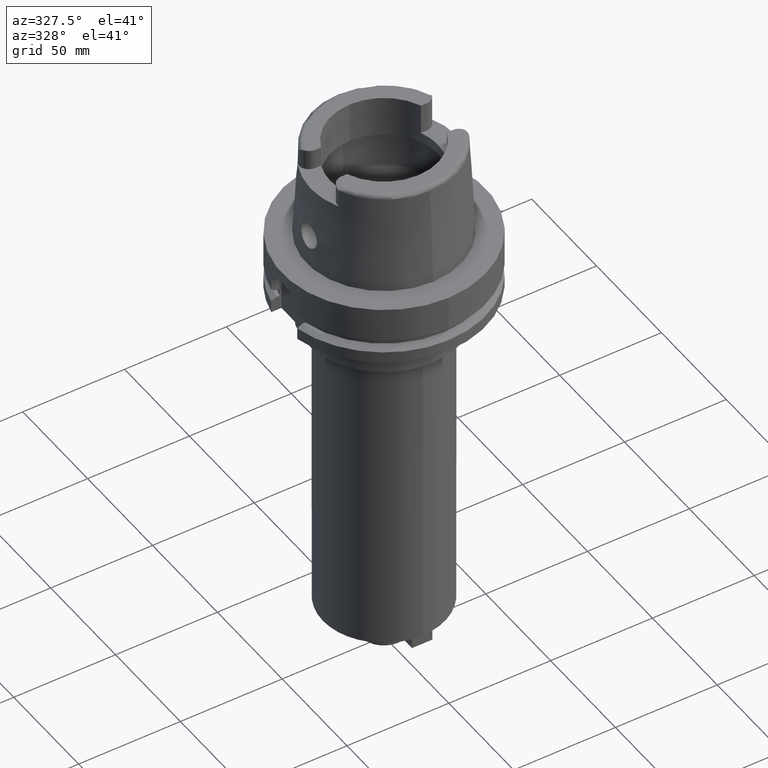
[diagram: clean part render]
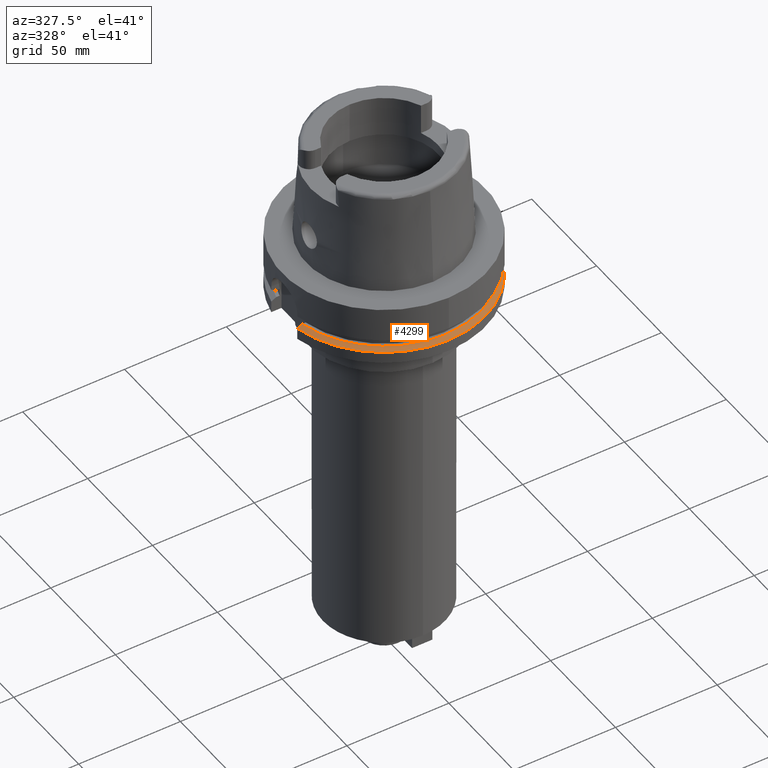
[diagram: same view with one face highlighted and labeled with its STEP entity id]
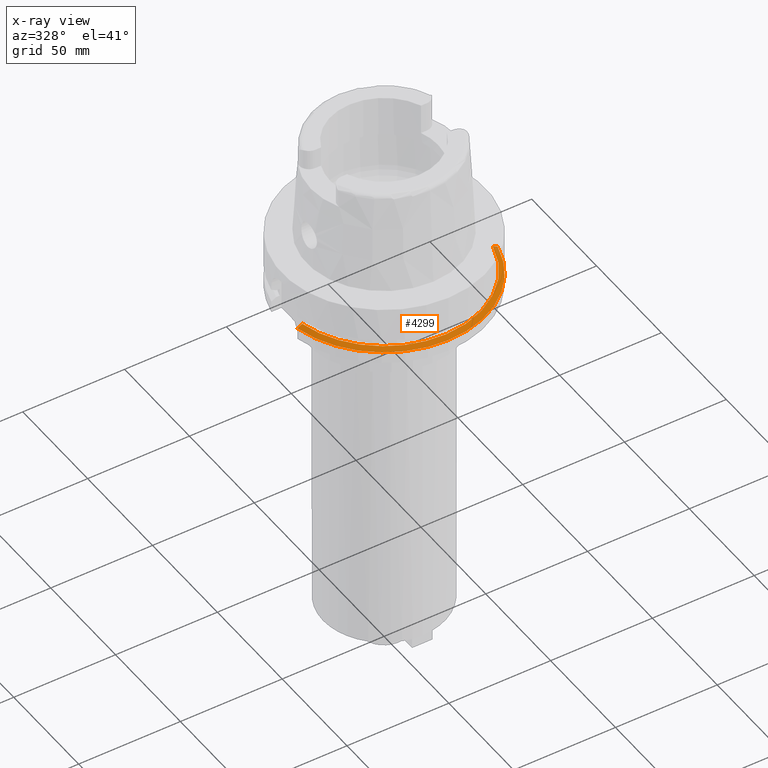
[diagram: x-ray of the same camera — body ghosted, the highlighted face saturated]
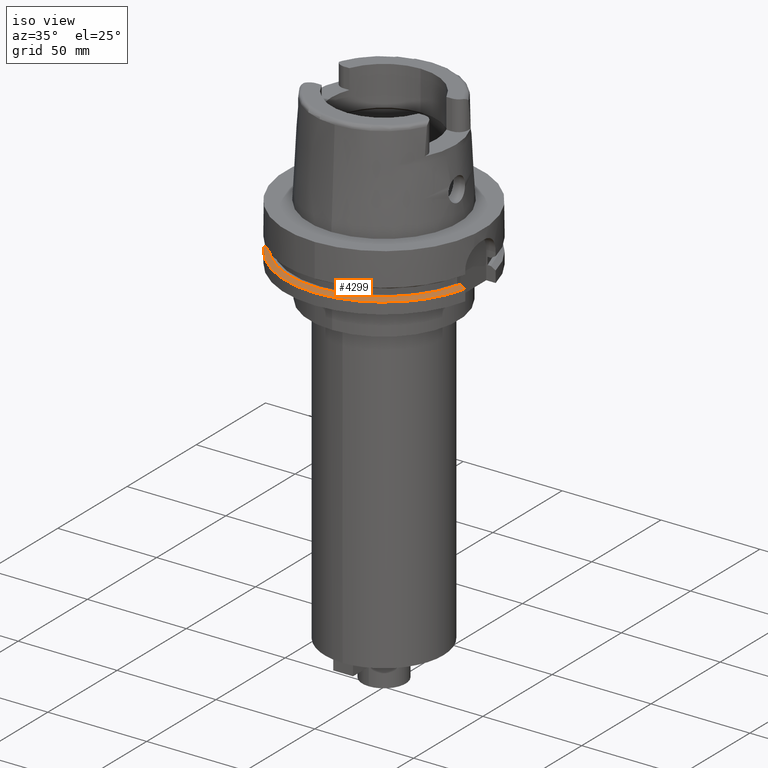
[diagram: same view with one face highlighted and labeled with its STEP entity id]
A machine part, auxiliary view. The second image highlights one B-rep face of the part: STEP entity #4299.
The next image is the same camera in x-ray: the body ghosted, the highlighted face saturated — about 2% of this face is hidden behind the body in this view.
A second angle (iso view) of the same face is appended — the face is thin or edge-on in the first view.
In plain terms, the highlighted conical surface has half-angle 60 deg.
Its self-contained STEP definition (entity closure, byte-faithful):
#1989=CARTESIAN_POINT('',(0.E0,0.E0,-2.1875E1));
#1990=DIRECTION('',(0.E0,0.E0,-1.E0));
#1991=DIRECTION('',(9.729578356533E-1,-2.309827916554E-1,0.E0));
#1992=AXIS2_PLACEMENT_3D('',#1989,#1990,#1991);
#1997=CARTESIAN_POINT('',(0.E0,0.E0,-2.1875E1));
#1998=DIRECTION('',(0.E0,0.E0,-1.E0));
#1999=DIRECTION('',(0.E0,-1.E0,0.E0));
#2000=AXIS2_PLACEMENT_3D('',#1997,#1998,#1999);
#2005=CARTESIAN_POINT('',(-4.898979485566E1,-1.E1,-2.324759526419E1));
#2006=CARTESIAN_POINT('',(-4.872002593966E1,-1.E1,-2.309499092031E1));
#2007=CARTESIAN_POINT('',(-4.818041161677E1,-1.E1,-2.278984413389E1));
#2008=CARTESIAN_POINT('',(-4.737076227628E1,-1.E1,-2.233230648793E1));
#2009=CARTESIAN_POINT('',(-4.683084020607E1,-1.E1,-2.202741066863E1));
#2010=CARTESIAN_POINT('',(-4.656083740330E1,-1.E1,-2.1875E1));
#2015=CARTESIAN_POINT('',(4.633477721644E1,-1.1E1,-2.1875E1));
#2016=CARTESIAN_POINT('',(4.660608588337E1,-1.1E1,-2.202740424370E1));
#2017=CARTESIAN_POINT('',(4.714858158706E1,-1.1E1,-2.233229423039E1));
#2018=CARTESIAN_POINT('',(4.796198326449E1,-1.1E1,-2.278983319675E1));
#2019=CARTESIAN_POINT('',(4.850402780016E1,-1.1E1,-2.309498594403E1));
#2020=CARTESIAN_POINT('',(4.877499359303E1,-1.1E1,-2.324759526419E1));
#2025=CARTESIAN_POINT('',(0.E0,0.E0,-2.324759526419E1));
#2026=DIRECTION('',(0.E0,0.E0,-1.E0));
#2027=DIRECTION('',(9.754998718606E-1,-2.2E-1,0.E0));
#2028=AXIS2_PLACEMENT_3D('',#2025,#2026,#2027);
#2033=CARTESIAN_POINT('',(0.E0,0.E0,-2.324759526419E1));
#2034=DIRECTION('',(0.E0,0.E0,-1.E0));
#2035=DIRECTION('',(0.E0,-1.E0,0.E0));
#2036=AXIS2_PLACEMENT_3D('',#2033,#2034,#2035);
#2684=CARTESIAN_POINT('',(-4.898979485566E1,-1.E1,-2.324759526419E1));
#2685=VERTEX_POINT('',#2684);
#2686=CARTESIAN_POINT('',(4.877499359303E1,-1.1E1,-2.324759526419E1));
#2687=CARTESIAN_POINT('',(0.E0,-5.E1,-2.324759526419E1));
#2688=VERTEX_POINT('',#2686);
#2689=VERTEX_POINT('',#2687);
#2709=CARTESIAN_POINT('',(-4.656083740330E1,-1.E1,-2.1875E1));
#2710=VERTEX_POINT('',#2709);
#2725=CARTESIAN_POINT('',(7.647549000671E-14,-4.762259526419E1,-2.1875E1));
#2726=VERTEX_POINT('',#2725);
#2727=CARTESIAN_POINT('',(4.633477721644E1,-1.1E1,-2.1875E1));
#2728=VERTEX_POINT('',#2727);
#4286=CARTESIAN_POINT('',(0.E0,0.E0,-2.256129763210E1));
#4287=DIRECTION('',(0.E0,0.E0,-1.E0));
#4288=DIRECTION('',(0.E0,-1.E0,0.E0));
#4289=AXIS2_PLACEMENT_3D('',#4286,#4287,#4288);
#4290=CONICAL_SURFACE('',#4289,4.881129763209E1,6.E1);
#4291=ORIENTED_EDGE('',*,*,#3956,.T.);
#4292=ORIENTED_EDGE('',*,*,#4281,.F.);
#4293=ORIENTED_EDGE('',*,*,#4279,.F.);
#4294=ORIENTED_EDGE('',*,*,#3901,.T.);
#4295=ORIENTED_EDGE('',*,*,#3928,.T.);
#4296=ORIENTED_EDGE('',*,*,#3926,.T.);
#4297=EDGE_LOOP('',(#4291,#4292,#4293,#4294,#4295,#4296));
#4298=FACE_OUTER_BOUND('',#4297,.F.);
#1993=CIRCLE('',#1992,4.762259526419E1);
#2001=CIRCLE('',#2000,4.762259526419E1);
#2011=B_SPLINE_CURVE_WITH_KNOTS('',3,(#2005,#2006,#2007,#2008,#2009,#2010),
.UNSPECIFIED.,.F.,.F.,(4,1,1,4),(0.E0,3.333333333333E-1,6.666666666667E-1,1.E0),
.UNSPECIFIED.);
#2021=B_SPLINE_CURVE_WITH_KNOTS('',3,(#2015,#2016,#2017,#2018,#2019,#2020),
.UNSPECIFIED.,.F.,.F.,(4,1,1,4),(0.E0,3.333333333333E-1,6.666666666667E-1,1.E0),
.UNSPECIFIED.);
#2029=CIRCLE('',#2028,5.E1);
#2037=CIRCLE('',#2036,5.E1);
#3901=EDGE_CURVE('',#2728,#2688,#2021,.T.);
#3926=EDGE_CURVE('',#2689,#2685,#2037,.T.);
#3928=EDGE_CURVE('',#2688,#2689,#2029,.T.);
#3956=EDGE_CURVE('',#2685,#2710,#2011,.T.);
#4279=EDGE_CURVE('',#2728,#2726,#1993,.T.);
#4281=EDGE_CURVE('',#2726,#2710,#2001,.T.);
#4299=ADVANCED_FACE('',(#4298),#4290,.T.);